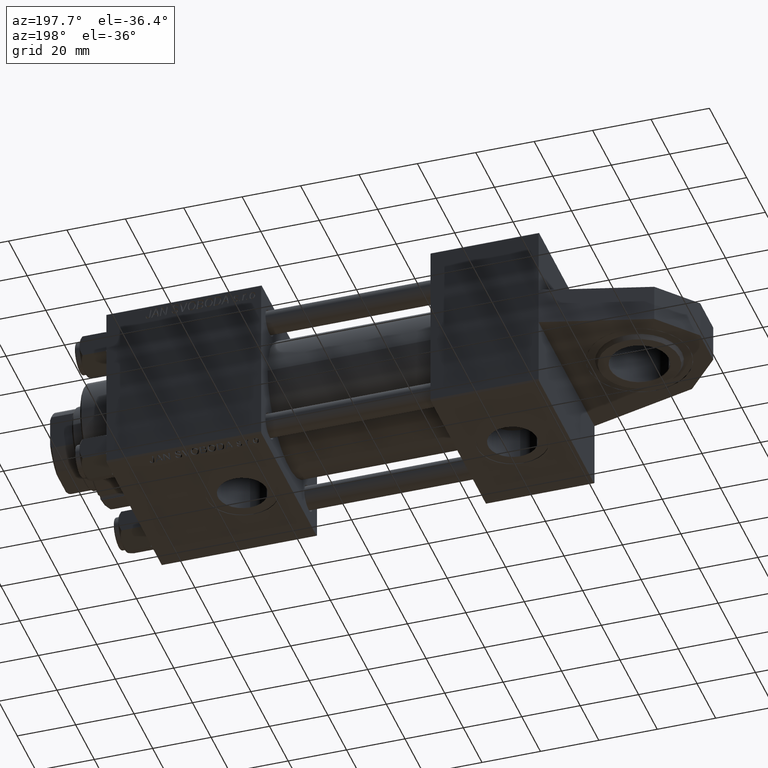
[diagram: clean part render]
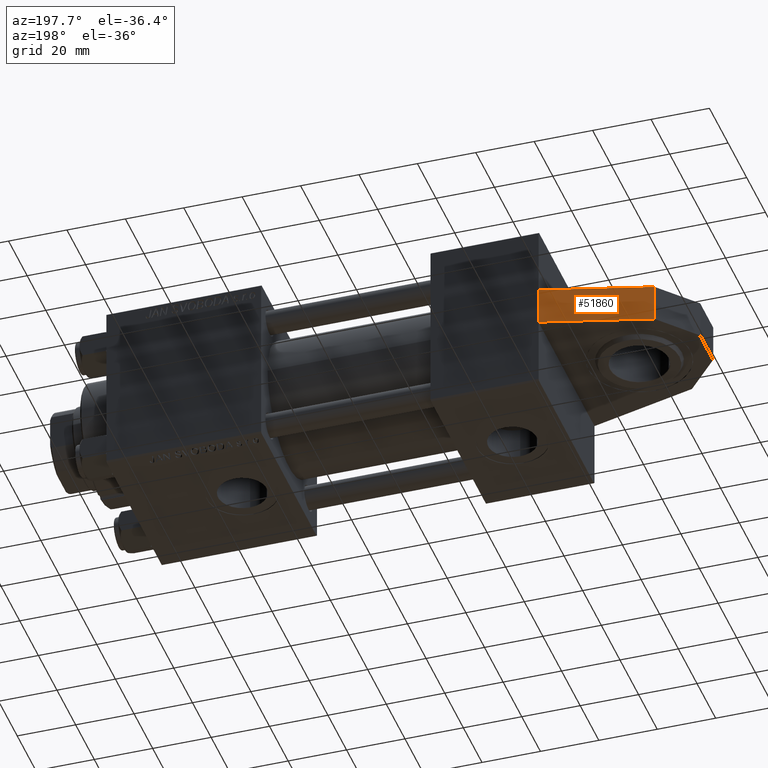
[diagram: same view with one face highlighted and labeled with its STEP entity id]
A machine part, auxiliary view. The second image highlights one B-rep face of the part: STEP entity #51860.
In plain terms, the highlighted planar face has unit normal (-0.2588, 0.9659, 0).
Its self-contained STEP definition (entity closure, byte-faithful):
#3332 = CARTESIAN_POINT ( 'NONE',  ( 0.000000000000000000, 6.500000000000000000, -30.00000000000000711 ) ) ;
#4486 = CARTESIAN_POINT ( 'NONE',  ( 0.000000000000000000, -6.499999999999984901, -30.00000000000000355 ) ) ;
#5195 = VERTEX_POINT ( 'NONE', #49339 ) ;
#5551 = DIRECTION ( 'NONE',  ( -0.9659258262890672020, -0.000000000000000000, 0.2588190451025247363 ) ) ;
#6308 = VECTOR ( 'NONE', #5551, 1000.000000000000227 ) ;
#7477 = EDGE_CURVE ( 'NONE', #5195, #27210, #28245, .T. ) ;
#8760 = CARTESIAN_POINT ( 'NONE',  ( -36.50000000000000711, -6.500000000000000000, -20.21985447626386545 ) ) ;
#9963 = EDGE_LOOP ( 'NONE', ( #29170, #50946, #32898, #17652 ) ) ;
#10648 = EDGE_CURVE ( 'NONE', #24525, #41633, #28230, .T. ) ;
#17263 = FACE_OUTER_BOUND ( 'NONE', #9963, .T. ) ;
#17652 = ORIENTED_EDGE ( 'NONE', *, *, #7477, .T. ) ;
#18704 = CARTESIAN_POINT ( 'NONE',  ( -36.50000000000000711, -6.500000000000000000, -20.21985447626386545 ) ) ;
#20522 = VECTOR ( 'NONE', #23523, 1000.000000000000000 ) ;
#21758 = CARTESIAN_POINT ( 'NONE',  ( -36.50000000000000711, 6.500000000000000000, -20.21985447626386545 ) ) ;
#21791 = DIRECTION ( 'NONE',  ( -0.9659258262890672020, -0.000000000000000000, 0.2588190451025247363 ) ) ;
#22036 = LINE ( 'NONE', #26234, #45638 ) ;
#23523 = DIRECTION ( 'NONE',  ( 0.000000000000000000, 1.000000000000000000, 0.000000000000000000 ) ) ;
#23716 = EDGE_CURVE ( 'NONE', #41633, #27210, #22036, .T. ) ;
#24525 = VERTEX_POINT ( 'NONE', #4486 ) ;
#25924 = DIRECTION ( 'NONE',  ( -0.9659258262890672020, 0.000000000000000000, 0.2588190451025247918 ) ) ;
#26234 = CARTESIAN_POINT ( 'NONE',  ( -36.50000000000000711, 6.500000000000000000, -20.21985447626386545 ) ) ;
#27210 = VERTEX_POINT ( 'NONE', #21758 ) ;
#28230 = LINE ( 'NONE', #44281, #20522 ) ;
#28245 = LINE ( 'NONE', #8760, #39852 ) ;
#29170 = ORIENTED_EDGE ( 'NONE', *, *, #23716, .F. ) ;
#29637 = EDGE_CURVE ( 'NONE', #24525, #5195, #41858, .T. ) ;
#32898 = ORIENTED_EDGE ( 'NONE', *, *, #29637, .T. ) ;
#33801 = CARTESIAN_POINT ( 'NONE',  ( -36.50000000000000711, -6.500000000000000000, -20.21985447626386545 ) ) ;
#34070 = PLANE ( 'NONE',  #46619 ) ;
#39852 = VECTOR ( 'NONE', #40848, 1000.000000000000000 ) ;
#40848 = DIRECTION ( 'NONE',  ( 0.000000000000000000, 1.000000000000000000, 0.000000000000000000 ) ) ;
#41633 = VERTEX_POINT ( 'NONE', #3332 ) ;
#41858 = LINE ( 'NONE', #18704, #6308 ) ;
#44281 = CARTESIAN_POINT ( 'NONE',  ( 0.000000000000000000, -6.500000000000000000, -30.00000000000000711 ) ) ;
#45638 = VECTOR ( 'NONE', #21791, 1000.000000000000227 ) ;
#45908 = DIRECTION ( 'NONE',  ( -0.2588190451025247918, 0.000000000000000000, -0.9659258262890672020 ) ) ;
#46619 = AXIS2_PLACEMENT_3D ( 'NONE', #33801, #45908, #25924 ) ;
#49339 = CARTESIAN_POINT ( 'NONE',  ( -36.50000000000000711, -6.500000000000000000, -20.21985447626386545 ) ) ;
#50946 = ORIENTED_EDGE ( 'NONE', *, *, #10648, .F. ) ;
#51860 = ADVANCED_FACE ( 'NONE', ( #17263 ), #34070, .T. ) ;